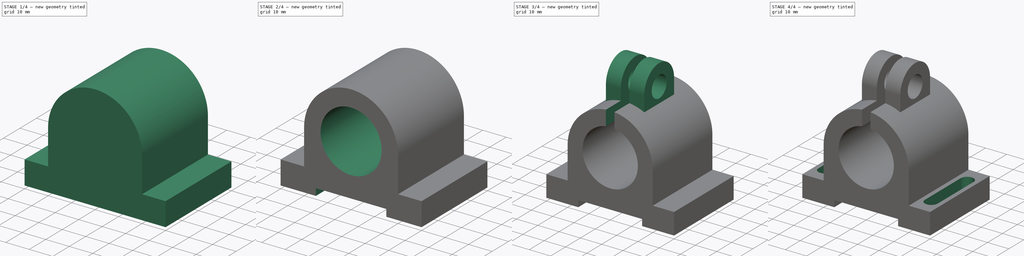
[diagram: build sequence overview — one tinted view per stage of 4, left to right]
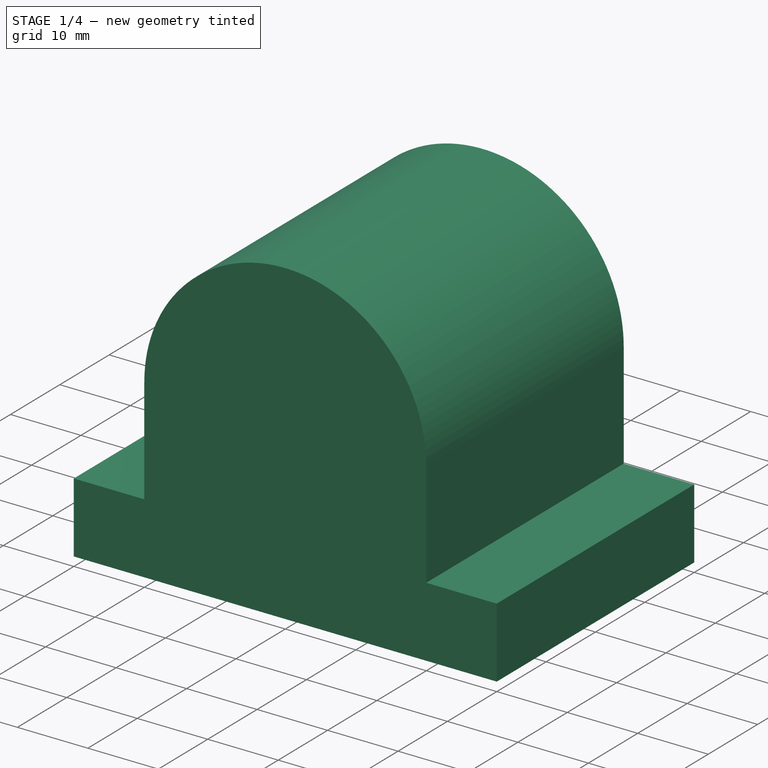
[diagram: stage 1 of 4 — iso view after this stage's code; geometry added in this stage tinted green]
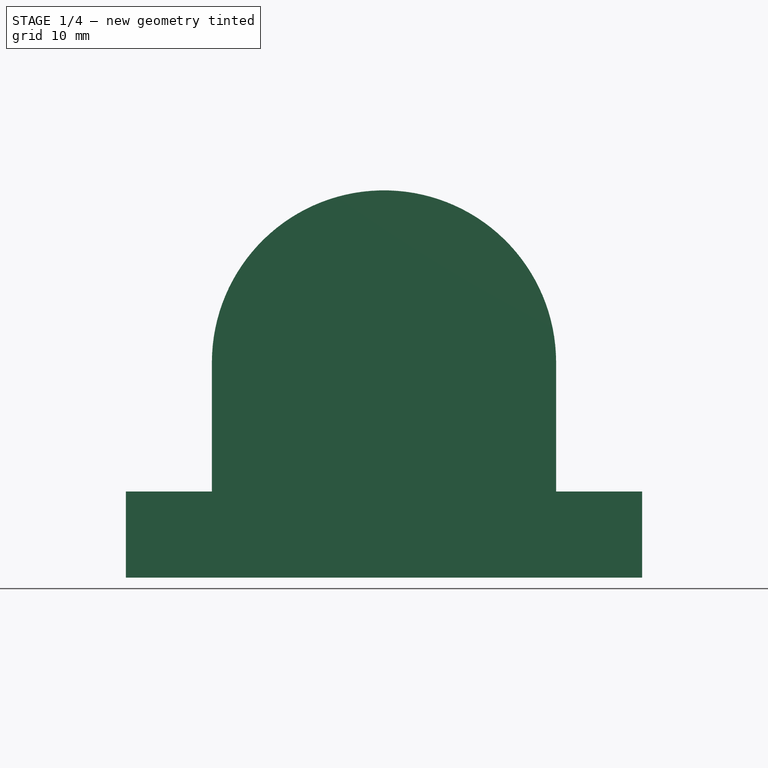
[diagram: stage 1 of 4 — front view after this stage's code; geometry added in this stage tinted green]
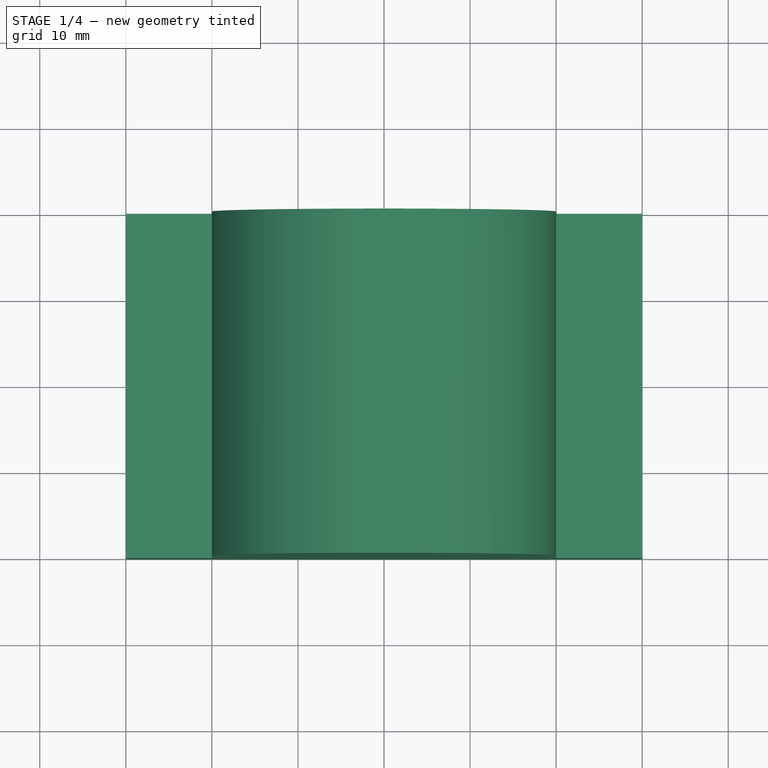
[diagram: stage 1 of 4 — top view after this stage's code; geometry added in this stage tinted green]
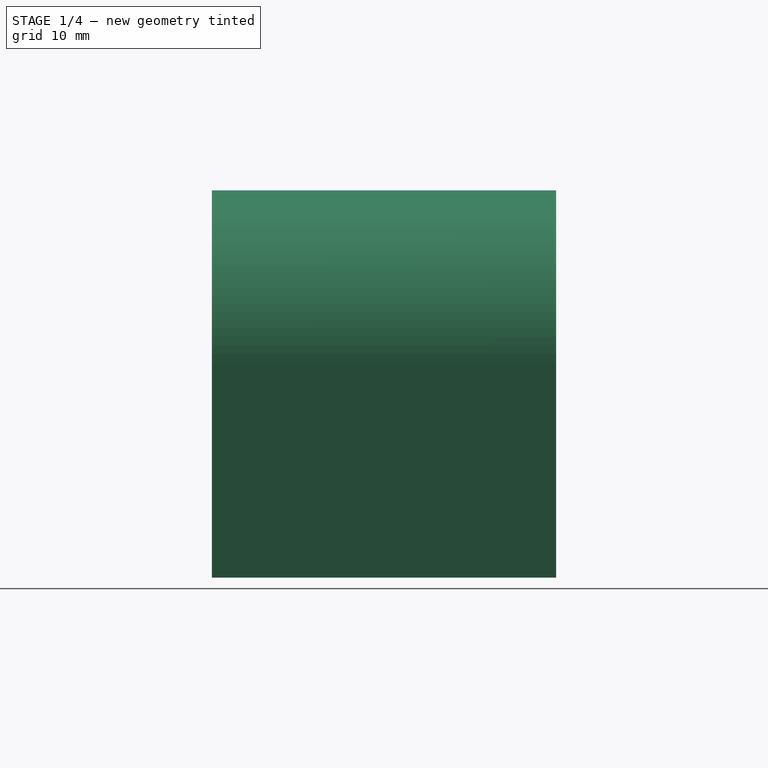
[diagram: stage 1 of 4 — right view after this stage's code; geometry added in this stage tinted green]
FCSTD DOCUMENT  (FreeCAD 0.18R4 (GitTag))
Label: CAD01
License: All rights reserved
LicenseURL: http://en.wikipedia.org/wiki/All_rights_reserved
objects: Sketcher::SketchObject×6, PartDesign::Pad×3, PartDesign::Pocket×3, PartDesign::SubtractiveCylinder×2, App::Part×1, PartDesign::SubtractiveBox×1, PartDesign::Body×1
note: 25 computed .brp shape members not serialized (recipe doc carries the construction recipe); baked Part::Feature solids carry a one-line shape summary decoded from their .brp

FEATURE [App::Part] Part
  Origin = -> Origin001
FEATURE [Sketcher::SketchObject] Sketch
  MapMode = 5
  Support = -> [XY_Plane]
  sketch-geometry (4):
    g0: LineSegment StartX=-30 StartY=20 StartZ=0 EndX=30 EndY=20 EndZ=0
    g1: LineSegment StartX=30 StartY=20 StartZ=0 EndX=30 EndY=-20 EndZ=0
    g2: LineSegment StartX=30 StartY=-20 StartZ=0 EndX=-30 EndY=-20 EndZ=0
    g3: LineSegment StartX=-30 StartY=-20 StartZ=0 EndX=-30 EndY=20 EndZ=0
  constraints (11):
    c: Coincident(g0,g1)
    c: Coincident(g1,g2)
    c: Coincident(g2,g3)
    c: Coincident(g3,g0)
    c: Horizontal(g0)
    c: Horizontal(g2)
    c: Vertical(g1)
    c: Vertical(g3)
    c: DistanceX(g0,g0) = 60
    c: DistanceY(g3,g3) = 40
    c: Symmetric(g0,g1,g-1)
FEATURE [PartDesign::Pad] Pad
  Length = 10
  Length2 = 100
  Profile = -> Sketch
  Type = 0
FEATURE [Sketcher::SketchObject] Sketch001
  MapMode = 5
  Placement = pos=(0,0,0) rot=(1,0,0;1.5708rad)
  Support = -> [XZ_Plane]
  sketch-geometry (4):
    g0: LineSegment StartX=-20 StartY=10 StartZ=0 EndX=-20 EndY=25 EndZ=0
    g1: LineSegment StartX=20 StartY=10 StartZ=0 EndX=20 EndY=25 EndZ=0
    g2: ArcOfCircle CenterX=1e-16 CenterY=25 CenterZ=0 NormalX=0 NormalY=0 NormalZ=1 AngleXU=0 Radius=20 StartAngle=0 EndAngle=3.14159
    g3: LineSegment StartX=-20 StartY=10 StartZ=0 EndX=20 EndY=10 EndZ=0
  constraints (11):
    c: Vertical(g0)
    c: DistanceY(g1,g1) = 15
    c: DistanceY(g-1,g1) = 10
    c: Symmetric(g1,g0,g-2)
    c: Symmetric(g0,g1,g-2)
    c: Coincident(g2,g1)
    c: Coincident(g2,g0)
    c: Radius(g2) = 20
    c: Coincident(g3,g0)
    c: Coincident(g3,g1)
    c: DistanceY(g-1,g2) = 25
FEATURE [PartDesign::Pad] Pad001
  BaseFeature = -> Pad
  Length = 40
  Length2 = 100
  Midplane = true
  Profile = -> Sketch001
  Type = 0
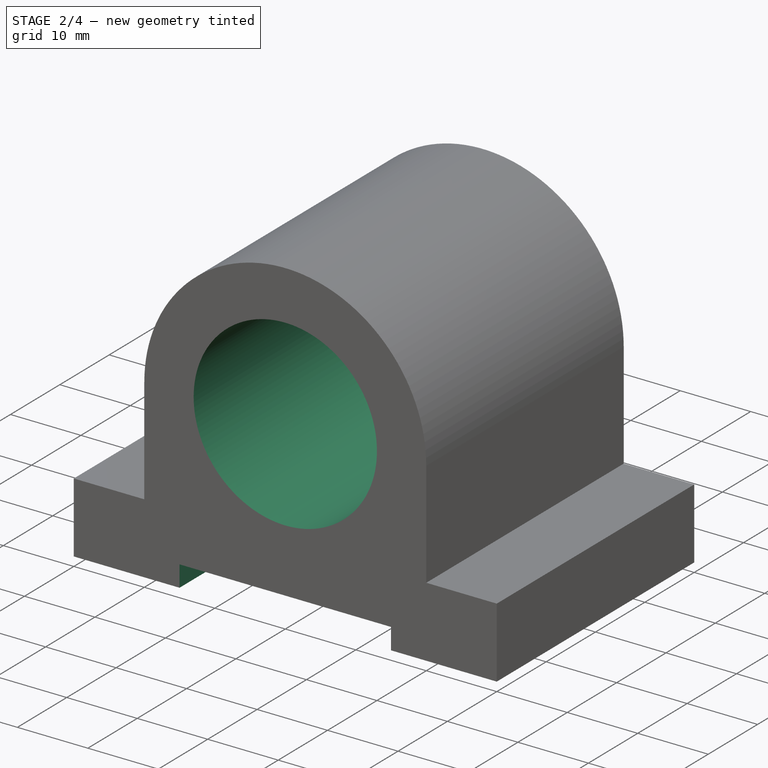
[diagram: stage 2 of 4 — iso view after this stage's code; geometry added in this stage tinted green]
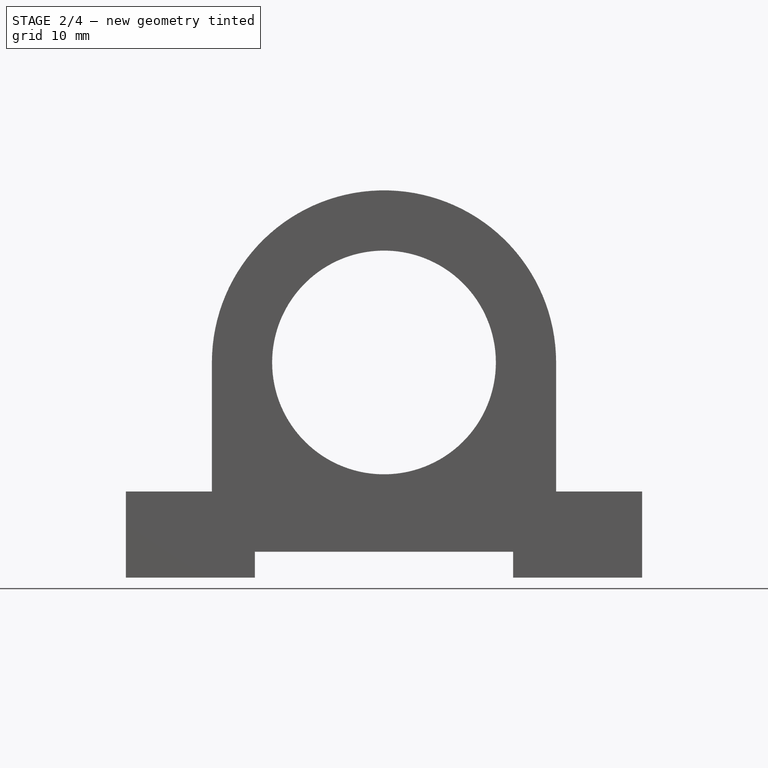
[diagram: stage 2 of 4 — front view after this stage's code; geometry added in this stage tinted green]
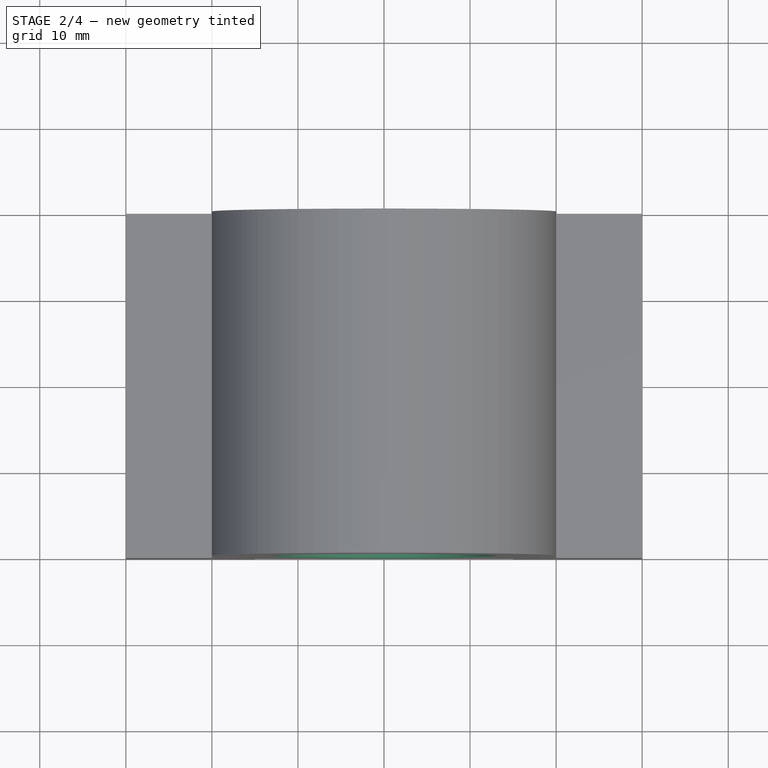
[diagram: stage 2 of 4 — top view after this stage's code; geometry added in this stage tinted green]
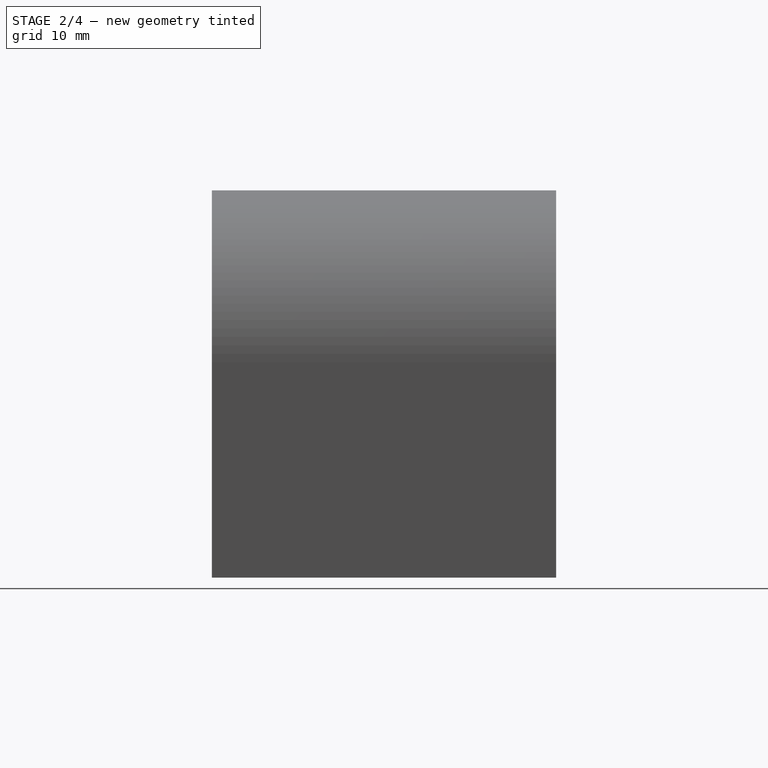
[diagram: stage 2 of 4 — right view after this stage's code; geometry added in this stage tinted green]
FEATURE [PartDesign::SubtractiveCylinder] Cylinder
  Angle = 360
  AttacherType = Attacher::AttachEngine3D
  AttachmentOffset = pos=(0,25,-40) rot=(0,0,1;0rad)
  BaseFeature = -> Pad001
  Height = 40
  MapMode = 5
  Placement = pos=(0,-20,25) rot=(0,0.707107,0.707107;3.14159rad)
  Radius = 13
  Support = -> [Pad001]
FEATURE [PartDesign::SubtractiveBox] Box
  AttacherType = Attacher::AttachEngine3D
  AttachmentOffset = pos=(-15,0,-3) rot=(0,0,1;0rad)
  BaseFeature = -> Cylinder
  Height = 3
  Length = 30
  MapMode = 5
  Placement = pos=(15,-20,3) rot=(0,1,0;3.14159rad)
  Support = -> [Cylinder]
  Width = 40
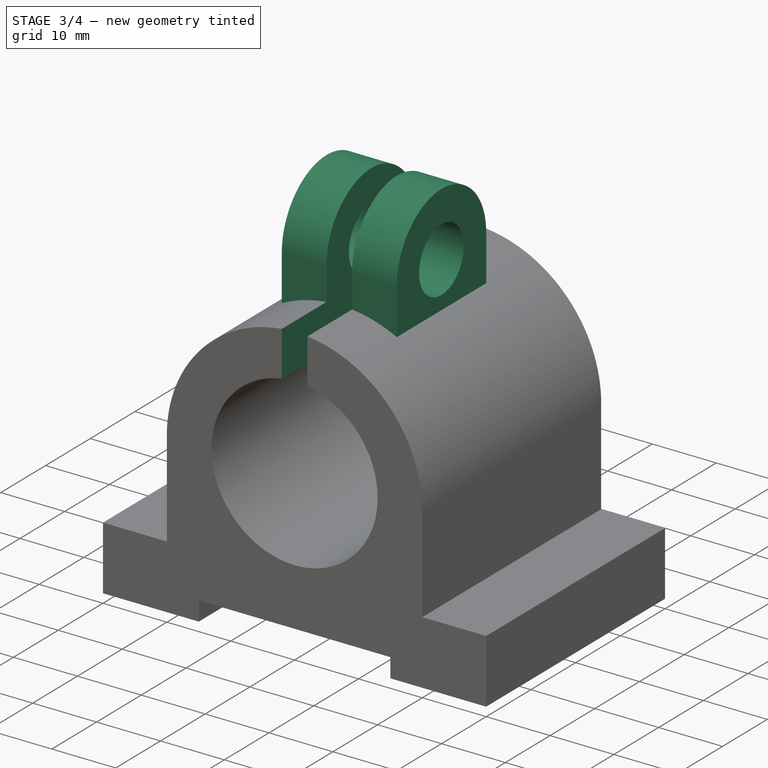
[diagram: stage 3 of 4 — iso view after this stage's code; geometry added in this stage tinted green]
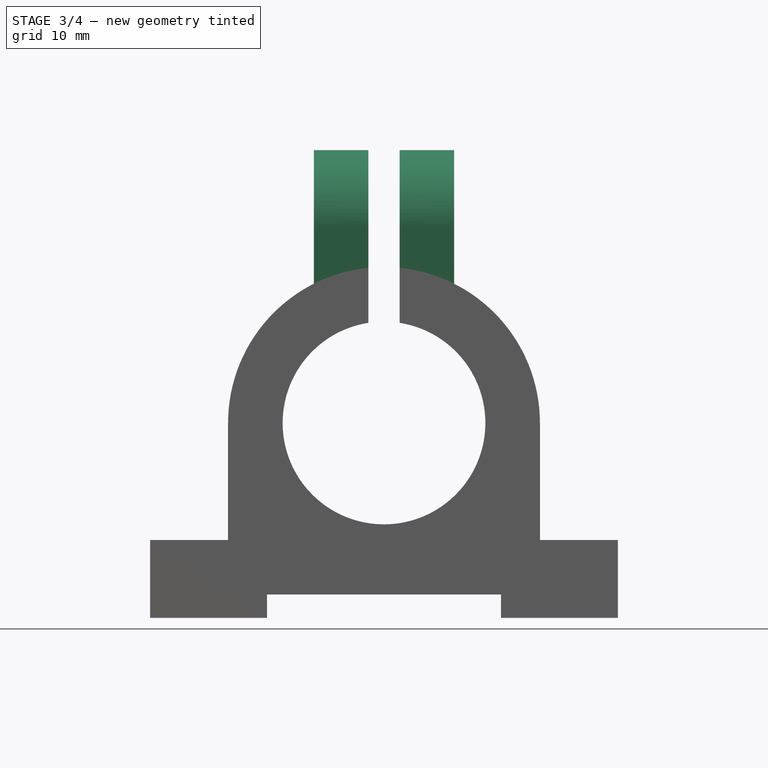
[diagram: stage 3 of 4 — front view after this stage's code; geometry added in this stage tinted green]
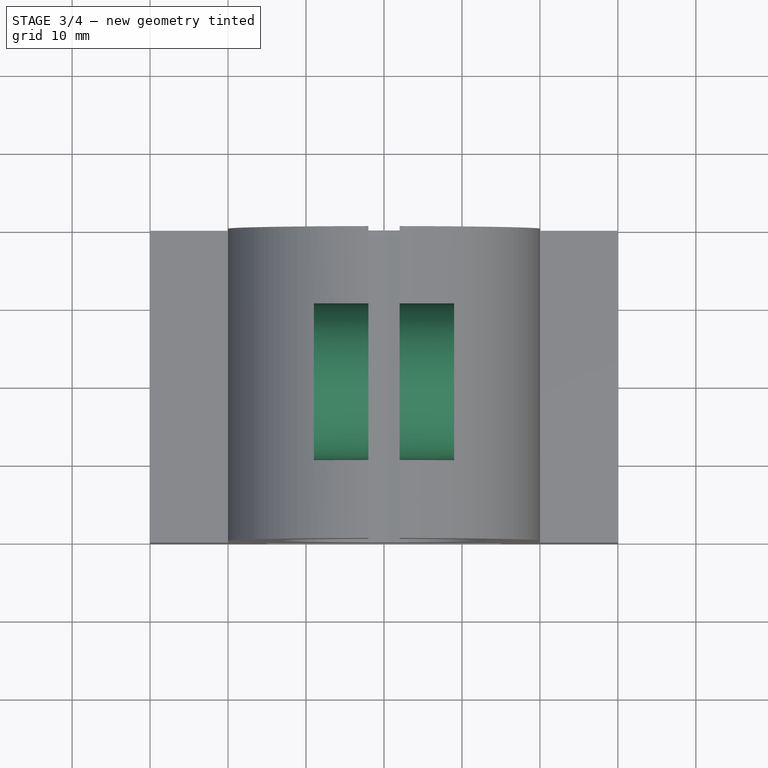
[diagram: stage 3 of 4 — top view after this stage's code; geometry added in this stage tinted green]
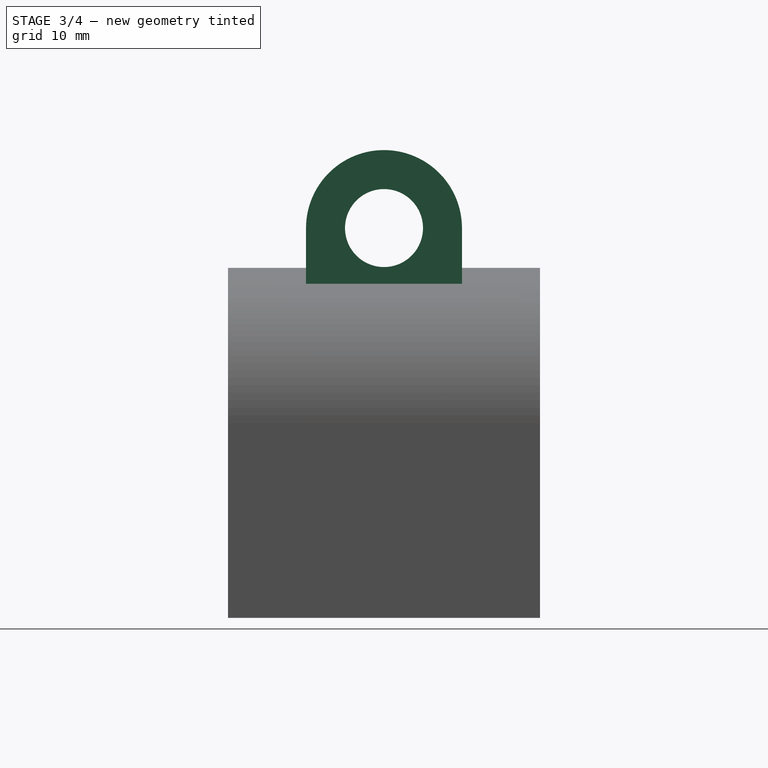
[diagram: stage 3 of 4 — right view after this stage's code; geometry added in this stage tinted green]
FEATURE [Sketcher::SketchObject] Sketch002
  MapMode = 5
  Placement = pos=(0,0,0) rot=(0.57735,0.57735,0.57735;2.0944rad)
  Support = -> [YZ_Plane]
  sketch-geometry (4):
    g0: LineSegment StartX=-10 StartY=50 StartZ=0 EndX=-10 EndY=38 EndZ=0
    g1: LineSegment StartX=10 StartY=50 StartZ=0 EndX=10 EndY=38 EndZ=0
    g2: LineSegment StartX=-10 StartY=38 StartZ=0 EndX=10 EndY=38 EndZ=0
    g3: ArcOfCircle CenterX=0 CenterY=50 CenterZ=0 NormalX=0 NormalY=0 NormalZ=1 AngleXU=0 Radius=10 StartAngle=0 EndAngle=3.14159
  constraints (13):
    c: Vertical(g0)
    c: Vertical(g1)
    c: Coincident(g3,g1)
    c: Coincident(g3,g0)
    c: Radius(g3) = 10
    c: DistanceY(g-1,g3) = 50
    c: Coincident(g2,g0)
    c: Coincident(g1,g2)
    c: Symmetric(g0,g1,g3)
    c: DistanceY(g-1,g0) = 38
    c: DistanceY(g-1,g1) = 38
    c: DistanceX(g3,g-1) = 0
    c: DistanceY(g-1,g1) = 50
FEATURE [PartDesign::Pad] Pad002
  BaseFeature = -> Box
  Length = 18
  Length2 = 100
  Midplane = true
  Placement = pos=(15,-20,3) rot=(0,1,0;3.14159rad)
  Profile = -> Sketch002
  Type = 0
FEATURE [PartDesign::SubtractiveCylinder] Cylinder001
  Angle = 360
  AttacherType = Attacher::AttachEngine3D
  AttachmentOffset = pos=(20,-47,-18) rot=(0,0,1;0rad)
  BaseFeature = -> Pad002
  Height = 18
  MapMode = 5
  Placement = pos=(9,1.42e-14,50) rot=(-0.57735,-0.57735,0.57735;2.0944rad)
  Radius = 5
  Support = -> [Pad002]
FEATURE [Sketcher::SketchObject] Sketch003
  MapMode = 5
  Placement = pos=(0,0,0) rot=(1,0,0;1.5708rad)
  Support = -> [XZ_Plane]
  sketch-geometry (4):
    g0: LineSegment StartX=-2 StartY=60 StartZ=0 EndX=2 EndY=60 EndZ=0
    g1: LineSegment StartX=2 StartY=60 StartZ=0 EndX=2 EndY=35 EndZ=0
    g2: LineSegment StartX=2 StartY=35 StartZ=0 EndX=-2 EndY=35 EndZ=0
    g3: LineSegment StartX=-2 StartY=35 StartZ=0 EndX=-2 EndY=60 EndZ=0
  constraints (11):
    c: Coincident(g0,g1)
    c: Coincident(g1,g2)
    c: Coincident(g2,g3)
    c: Coincident(g3,g0)
    c: Horizontal(g2)
    c: Vertical(g1)
    c: Vertical(g3)
    c: DistanceX(g0,g0) = 4
    c: DistanceY(g2,g0) = 25
    c: Symmetric(g0,g0,g-2)
    c: DistanceY(g-1,g0) = 60
FEATURE [PartDesign::Pocket] Pocket
  BaseFeature = -> Cylinder001
  Length = 40
  Length2 = 100
  Midplane = true
  Placement = pos=(9,1.42e-14,50) rot=(-0.57735,-0.57735,0.57735;2.0944rad)
  Profile = -> Sketch003
  Type = 0
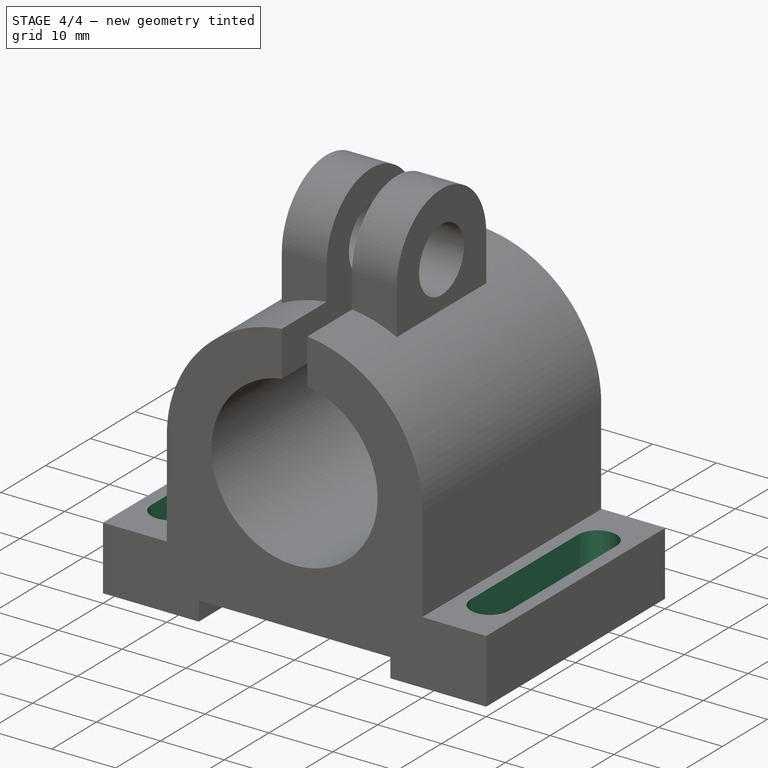
[diagram: stage 4 of 4 — iso view after this stage's code; geometry added in this stage tinted green]
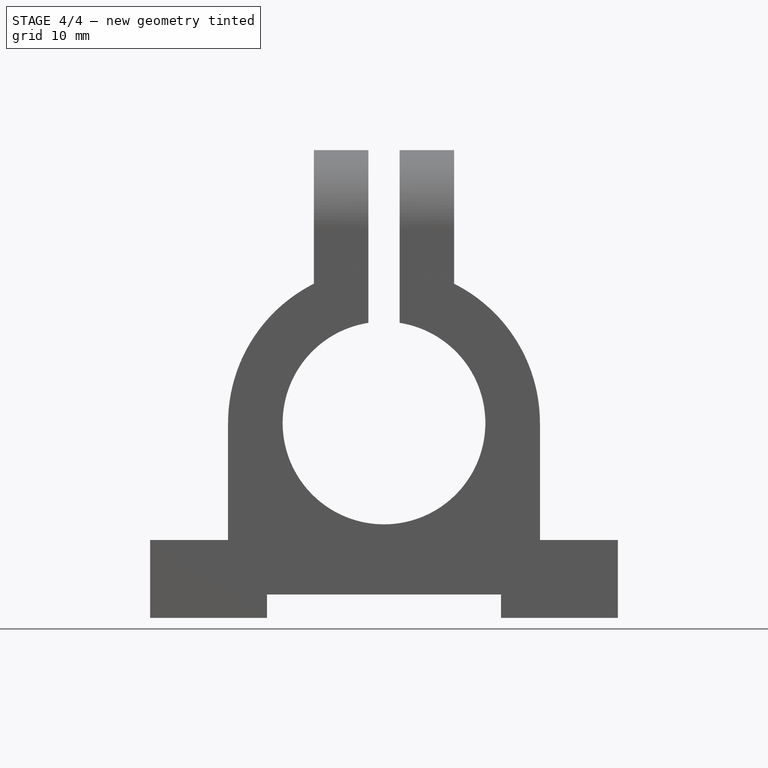
[diagram: stage 4 of 4 — front view after this stage's code; geometry added in this stage tinted green]
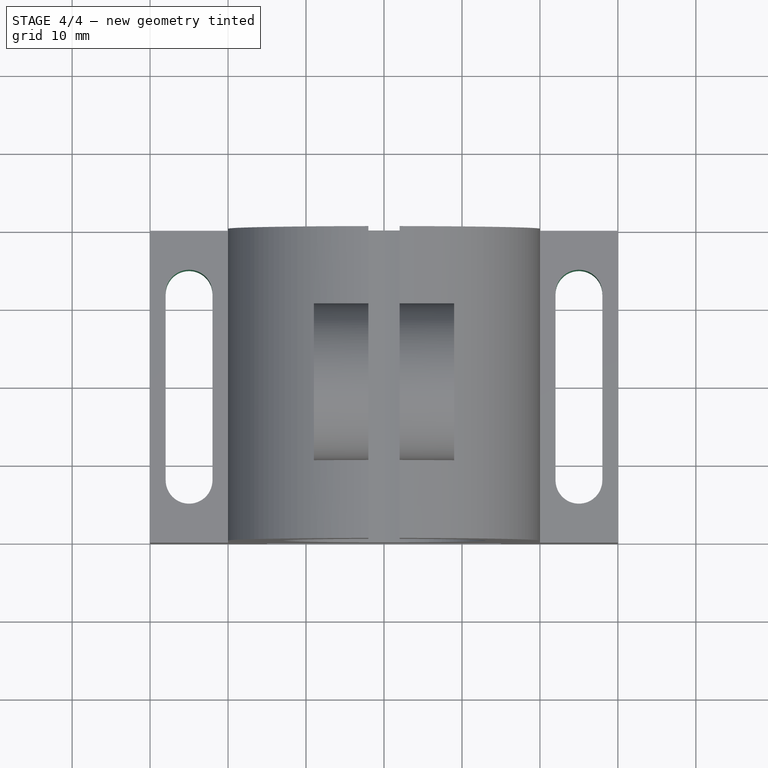
[diagram: stage 4 of 4 — top view after this stage's code; geometry added in this stage tinted green]
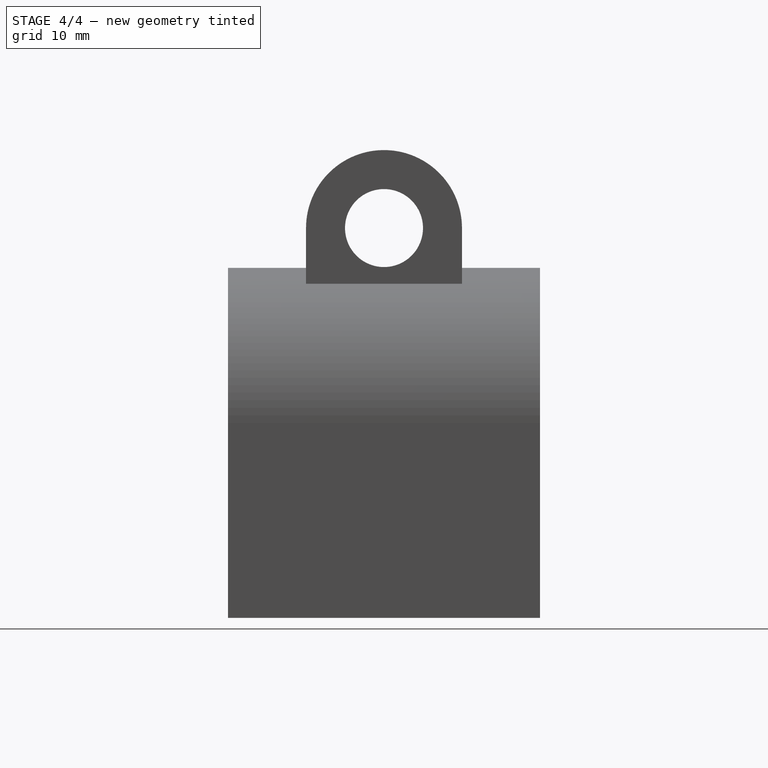
[diagram: stage 4 of 4 — right view after this stage's code; geometry added in this stage tinted green]
FEATURE [Sketcher::SketchObject] Sketch004
  MapMode = 5
  Support = -> [XY_Plane]
  sketch-geometry (4):
    g0: LineSegment StartX=-28 StartY=12 StartZ=0 EndX=-28 EndY=-12 EndZ=0
    g1: LineSegment StartX=-22 StartY=12 StartZ=0 EndX=-22 EndY=-12 EndZ=0
    g2: ArcOfCircle CenterX=-25 CenterY=12 CenterZ=0 NormalX=0 NormalY=0 NormalZ=1 AngleXU=0 Radius=3 StartAngle=0 EndAngle=3.14159
    g3: ArcOfCircle CenterX=-25 CenterY=-12 CenterZ=0 NormalX=0 NormalY=0 NormalZ=1 AngleXU=0 Radius=3 StartAngle=3.14159 EndAngle=6.28319
  constraints (14):
    c: DistanceY(g0,g0) = 24
    c: DistanceY(g1,g1) = 24
    c: DistanceY(g-1,g0) = 12
    c: DistanceY(g-1,g1) = 12
    c: Coincident(g2,g1)
    c: Coincident(g2,g0)
    c: Coincident(g3,g0)
    c: Coincident(g3,g1)
    c: Radius(g2) = 3
    c: Equal(g2,g3)
    c: Symmetric(g1,g0,g2)
    c: Symmetric(g1,g0,g3)
    c: DistanceX(g2,g-1) = 25
    c: DistanceX(g3,g-1) = 25
FEATURE [PartDesign::Pocket] Pocket001
  BaseFeature = -> Pocket
  Length = 10
  Length2 = 100
  Placement = pos=(9,1.42e-14,50) rot=(-0.57735,-0.57735,0.57735;2.0944rad)
  Profile = -> Sketch004
  Reversed = true
  Type = 0
FEATURE [Sketcher::SketchObject] Sketch005
  MapMode = 5
  Support = -> [XY_Plane]
  sketch-geometry (4):
    g0: LineSegment StartX=22 StartY=12 StartZ=0 EndX=22 EndY=-12 EndZ=0
    g1: LineSegment StartX=28 StartY=12 StartZ=0 EndX=28 EndY=-12 EndZ=0
    g2: ArcOfCircle CenterX=25 CenterY=12 CenterZ=0 NormalX=0 NormalY=0 NormalZ=1 AngleXU=0 Radius=3 StartAngle=6e-16 EndAngle=3.14159
    g3: ArcOfCircle CenterX=25 CenterY=-12 CenterZ=0 NormalX=0 NormalY=0 NormalZ=1 AngleXU=0 Radius=3 StartAngle=3.14159 EndAngle=6.28319
  constraints (14):
    c: DistanceY(g-1,g0) = 12
    c: DistanceY(g0,g-1) = 12
    c: DistanceY(g-1,g1) = 12
    c: DistanceY(g1,g-1) = 12
    c: Coincident(g2,g0)
    c: Coincident(g3,g0)
    c: Coincident(g3,g1)
    c: Radius(g3) = 3
    c: Equal(g3,g2)
    c: Coincident(g2,g1)
    c: Symmetric(g0,g1,g2)
    c: Symmetric(g0,g1,g3)
    c: DistanceX(g-1,g2) = 25
    c: DistanceX(g-1,g3) = 25
FEATURE [PartDesign::Pocket] Pocket002
  BaseFeature = -> Pocket001
  Length = 10
  Length2 = 100
  Placement = pos=(9,1.42e-14,50) rot=(-0.57735,-0.57735,0.57735;2.0944rad)
  Profile = -> Sketch005
  Reversed = true
  Type = 0
FEATURE [PartDesign::Body] Body
  Group = -> [Sketch,Pad,Sketch001,Pad001,Cylinder,Box,Sketch002,Pad002,Cylinder001,Sketch003,Pocket,Sketch004,Pocket001,Sketch005,Pocket002]
  Origin = -> Origin
  Tip = -> Pocket002
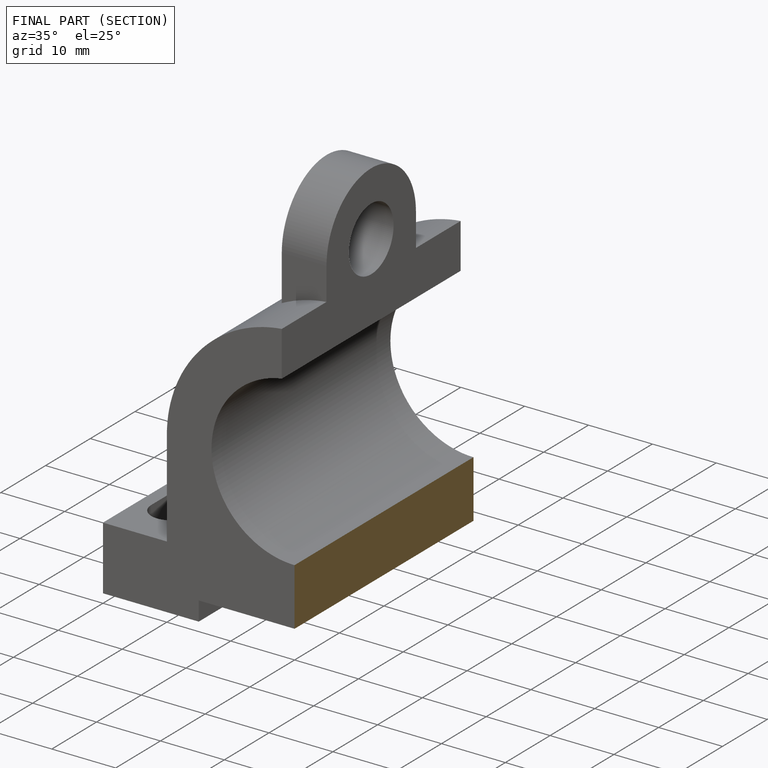
[diagram: finished part — half-section view (interior)]
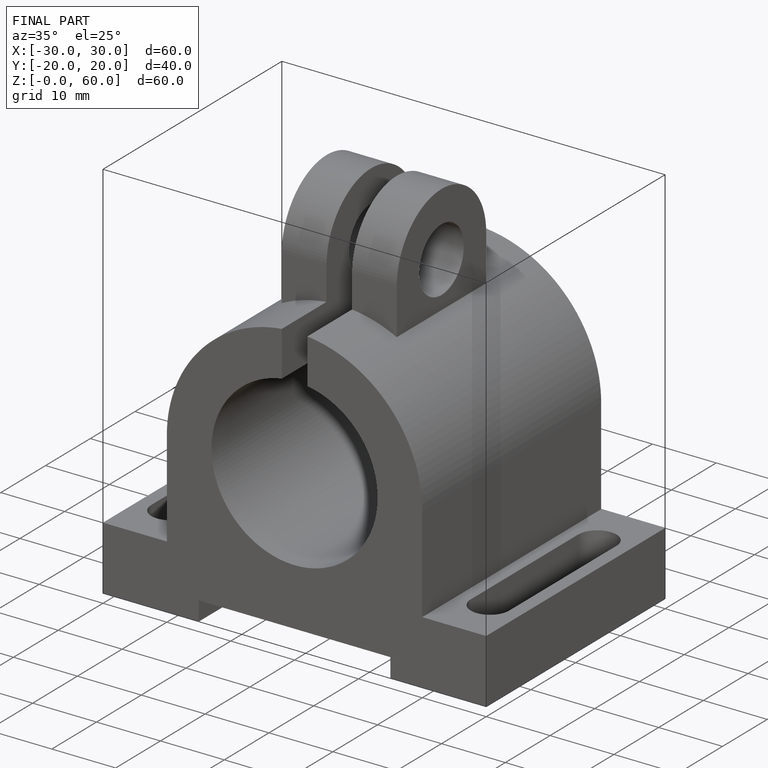
[diagram: finished part — iso view with bounding-box wireframe]
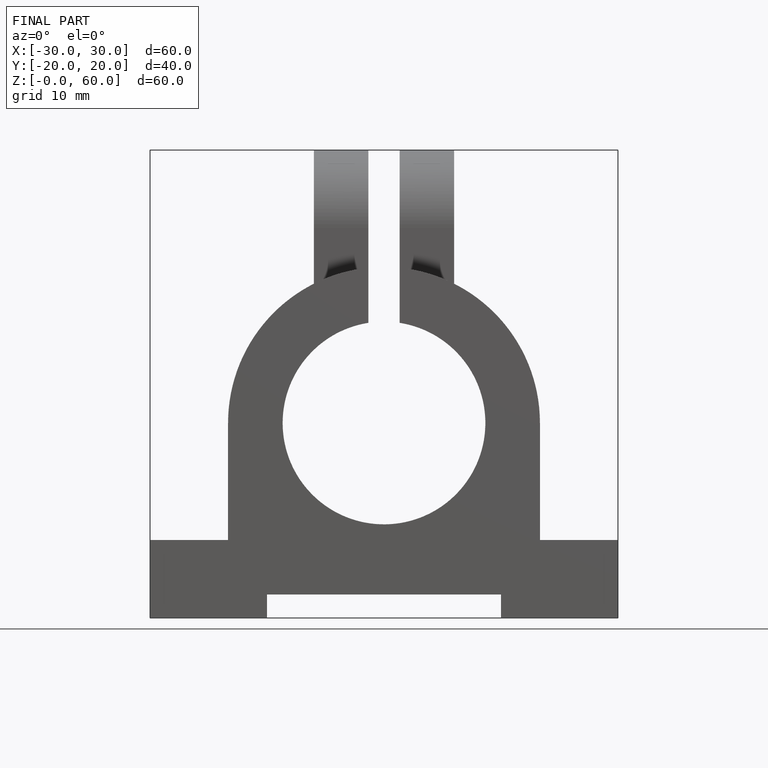
[diagram: finished part — front view with bounding-box wireframe]
